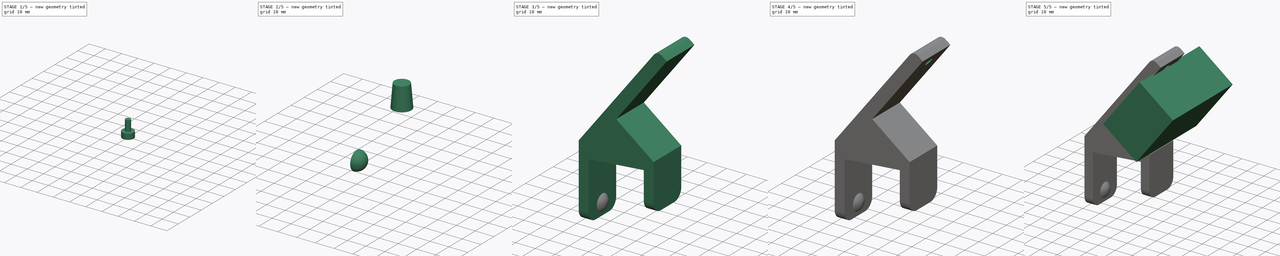
[diagram: build sequence overview — one tinted view per stage of 5, left to right]
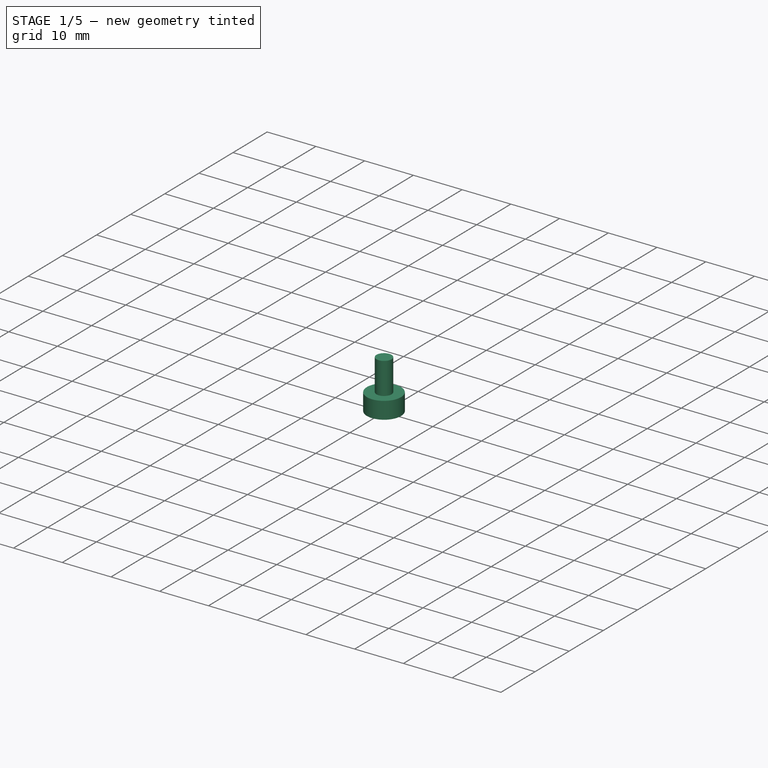
[diagram: stage 1 of 5 — iso view after this stage's code; geometry added in this stage tinted green]
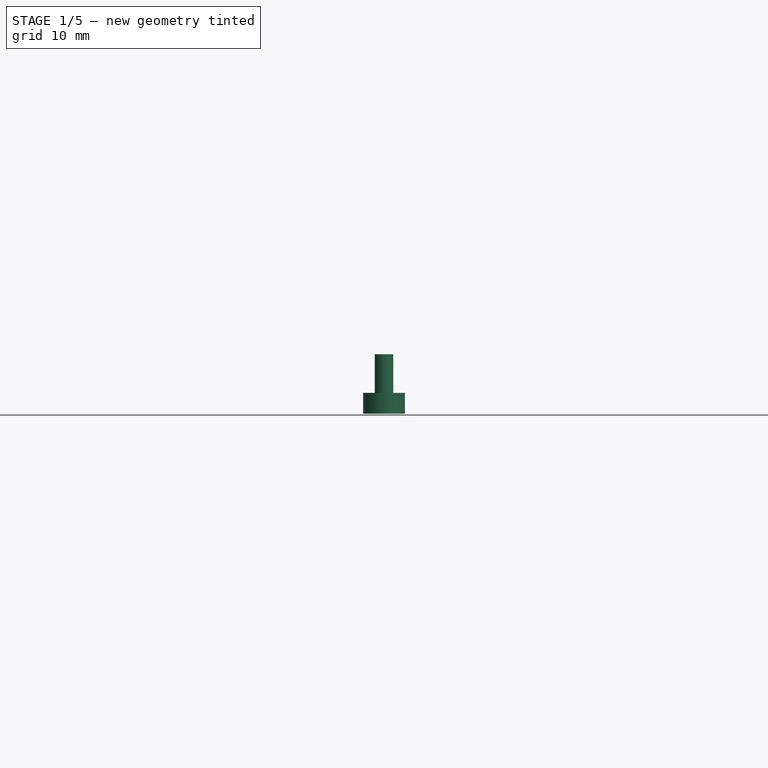
[diagram: stage 1 of 5 — front view after this stage's code; geometry added in this stage tinted green]
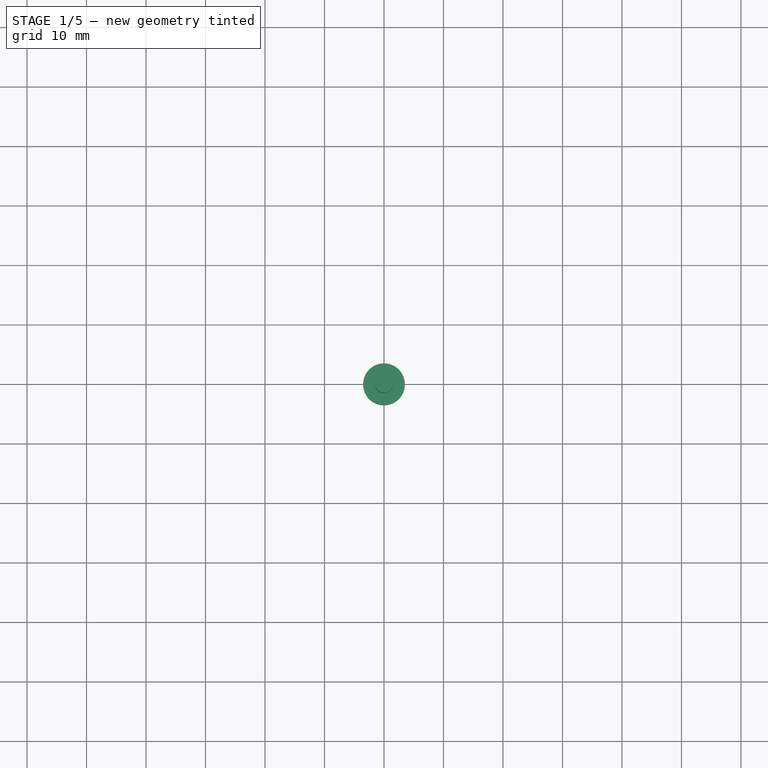
[diagram: stage 1 of 5 — top view after this stage's code; geometry added in this stage tinted green]
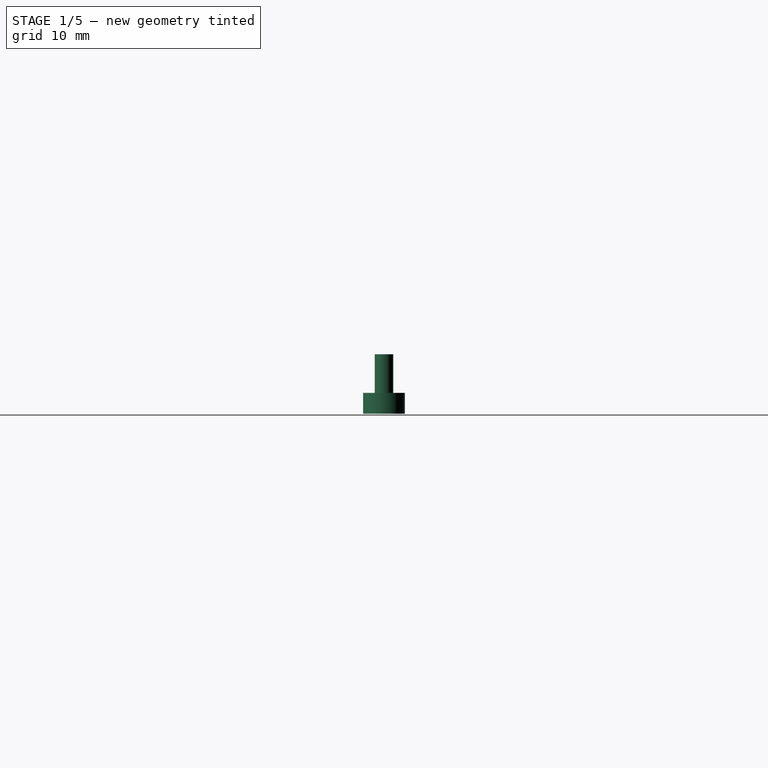
[diagram: stage 1 of 5 — right view after this stage's code; geometry added in this stage tinted green]
FCSTD DOCUMENT  (FreeCAD 0.19R)
Label: led_lamp_monitor_holder
License: All rights reserved
LicenseURL: http://en.wikipedia.org/wiki/All_rights_reserved
objects: Part::Cylinder×3, Part::FeaturePython×3, Part::Sphere×2, Part::MultiFuse×2, Part::Cut×2, App::Part×2, Sketcher::SketchObject×1, PartDesign::Pad×1, PartDesign::Body×1, Part::Box×1, Part::Fillet×1, Part::Plane×1, App::DocumentObjectGroup×1, Part::Cone×1
note: 20 computed .brp shape members not serialized (recipe doc carries the construction recipe); baked Part::Feature solids carry a one-line shape summary decoded from their .brp

FEATURE [Part::Cylinder] Cylinder003  label="nut hole cylinder"
  Angle = 360
  AttacherType = Attacher::AttachEngine3D
  Height = 3.5
  Radius = 3.5
FEATURE [Part::Cylinder] Cylinder004  label="bolt hole cylinder"
  Angle = 360
  AttacherType = Attacher::AttachEngine3D
  Height = 10
  Radius = 1.55
FEATURE [Part::MultiFuse] Fusion003  label="hole extraction"
  Shapes = -> [Cylinder003,Cylinder004]
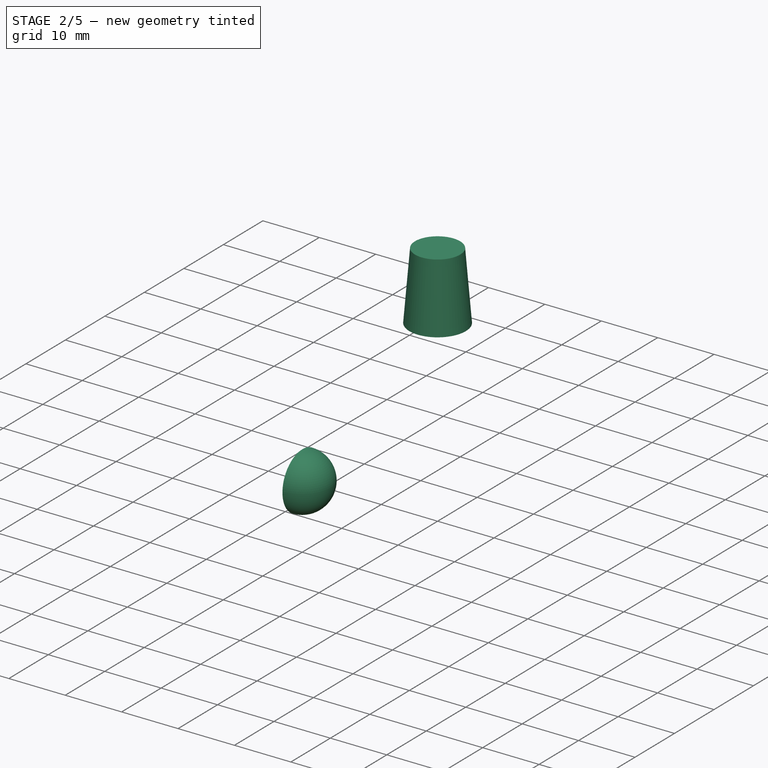
[diagram: stage 2 of 5 — iso view after this stage's code; geometry added in this stage tinted green]
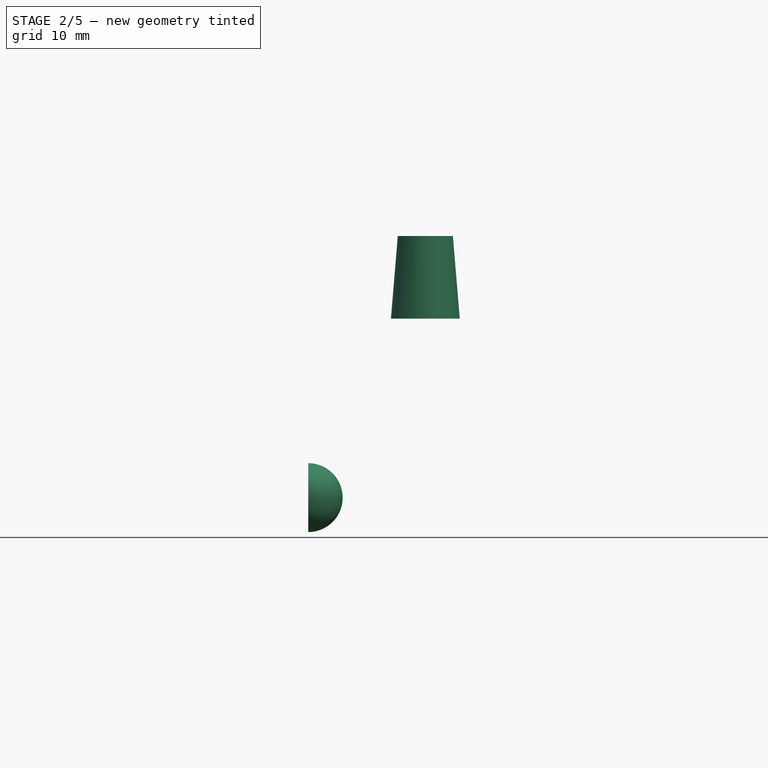
[diagram: stage 2 of 5 — front view after this stage's code; geometry added in this stage tinted green]
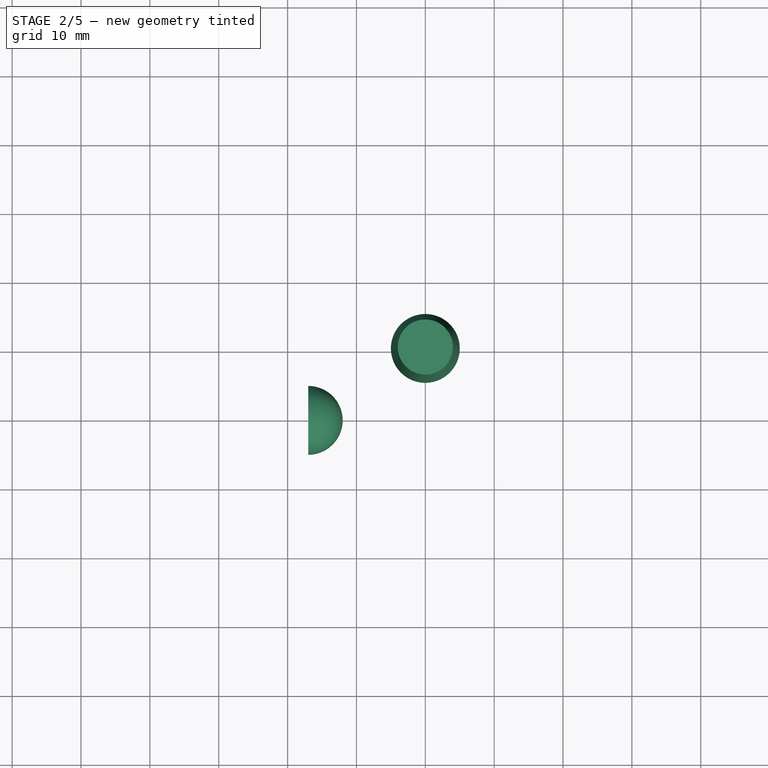
[diagram: stage 2 of 5 — top view after this stage's code; geometry added in this stage tinted green]
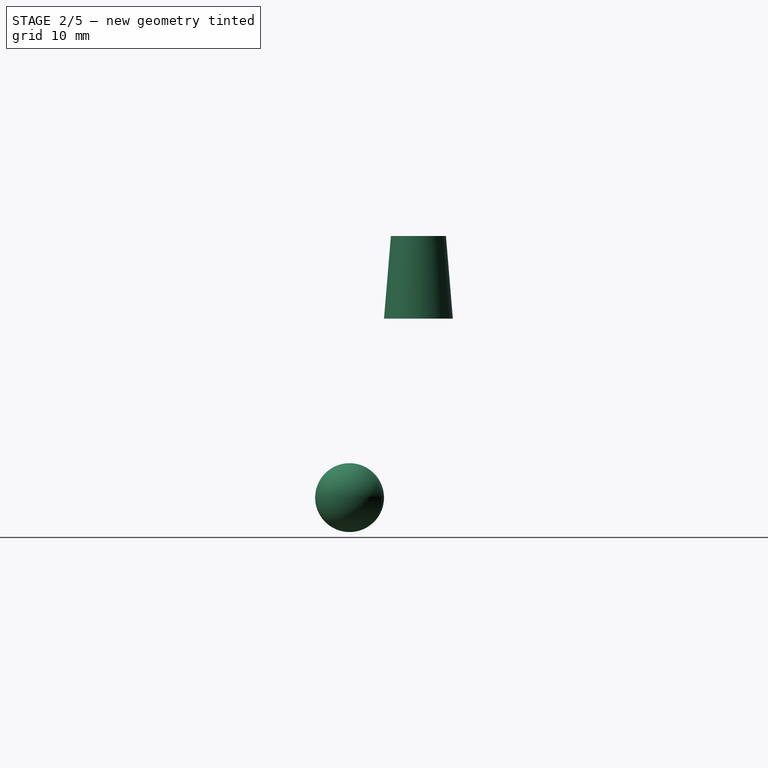
[diagram: stage 2 of 5 — right view after this stage's code; geometry added in this stage tinted green]
FEATURE [Part::Sphere] Sphere001
  Angle1 = -90
  Angle2 = 90
  Angle3 = 180
  AttacherType = Attacher::AttachEngine3D
  Placement = pos=(-17,-10,-26) rot=(0,0,-1;1.5708rad)
  Radius = 5
FEATURE [App::DocumentObjectGroup] GrExplode_Slice  label="Test Exploded Slice"
  Group = -> [Slice_child0,Slice_child1]
FEATURE [Part::Cone] Cone
  Angle = 360
  AttacherType = Attacher::AttachEngine3D
  Height = 12
  Radius1 = 5
  Radius2 = 4
FEATURE [Part::Cut] Cut001  label="bolt cover"
  Base = -> Cone
  Tool = -> Fusion003
FEATURE [App::Part] Part001  label="bolt cover part"
  Group = -> [Cone,Cylinder003,Cylinder004,Fusion003,Cut001]
  Origin = -> Origin003
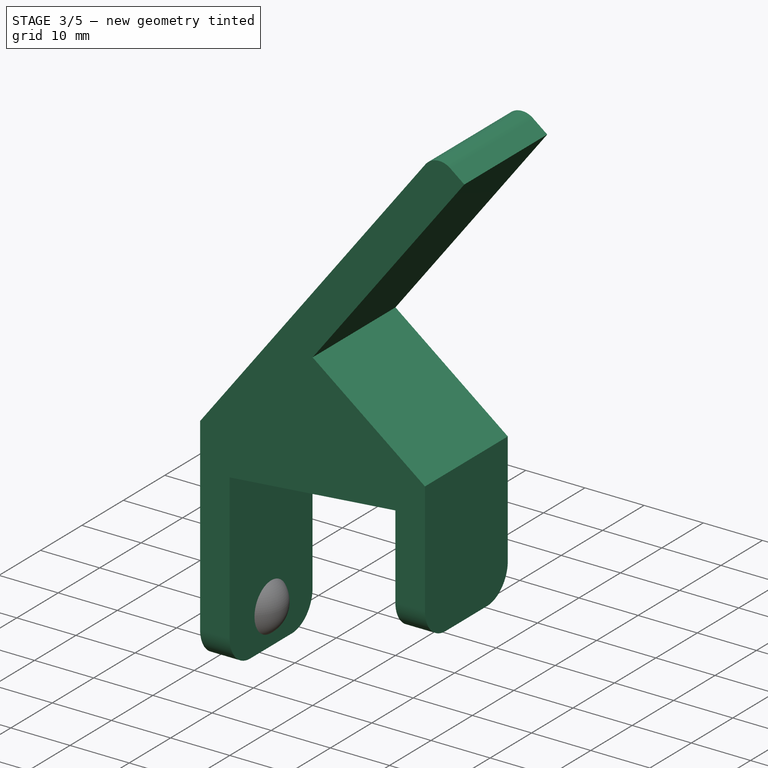
[diagram: stage 3 of 5 — iso view after this stage's code; geometry added in this stage tinted green]
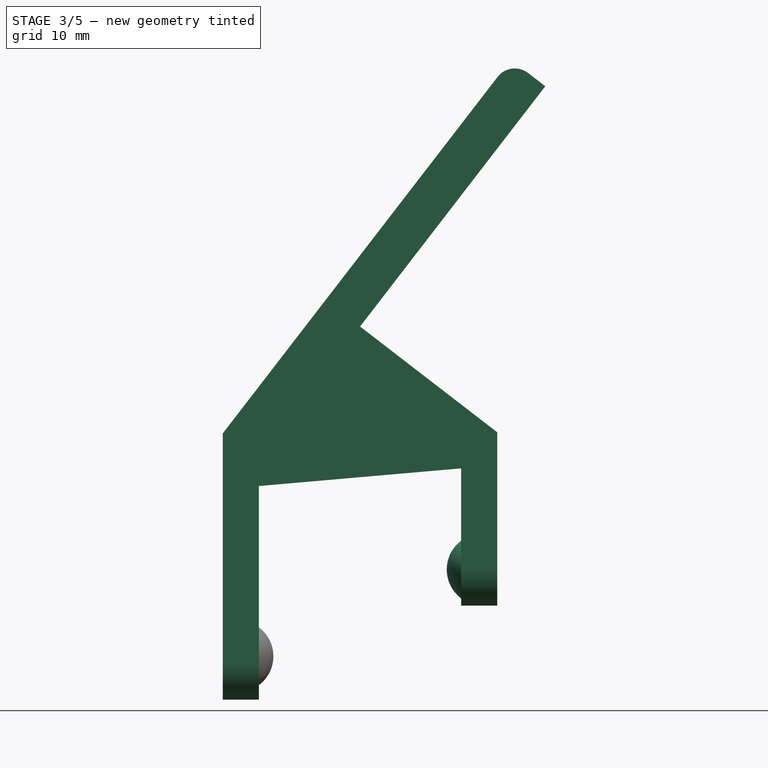
[diagram: stage 3 of 5 — front view after this stage's code; geometry added in this stage tinted green]
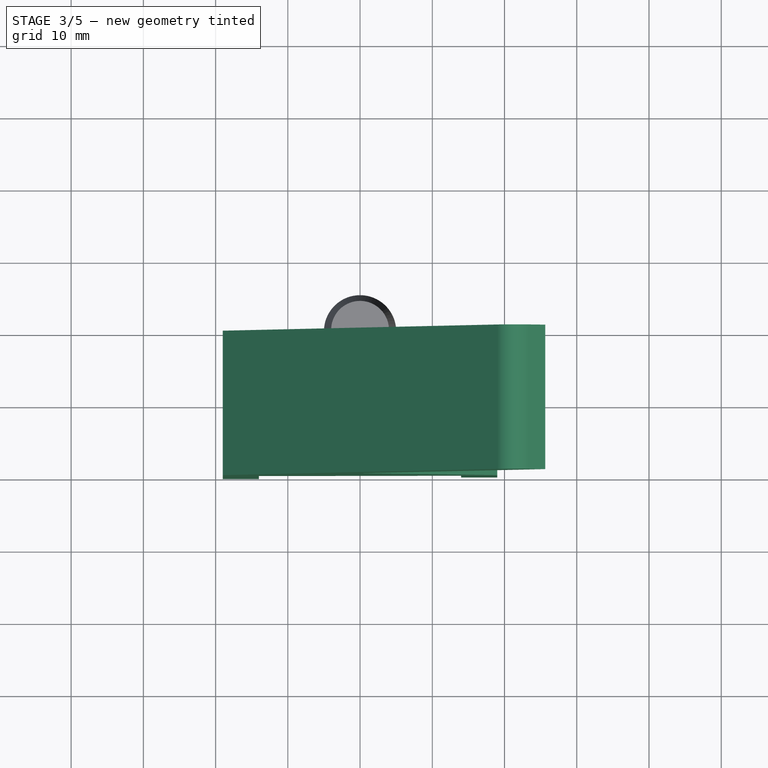
[diagram: stage 3 of 5 — top view after this stage's code; geometry added in this stage tinted green]
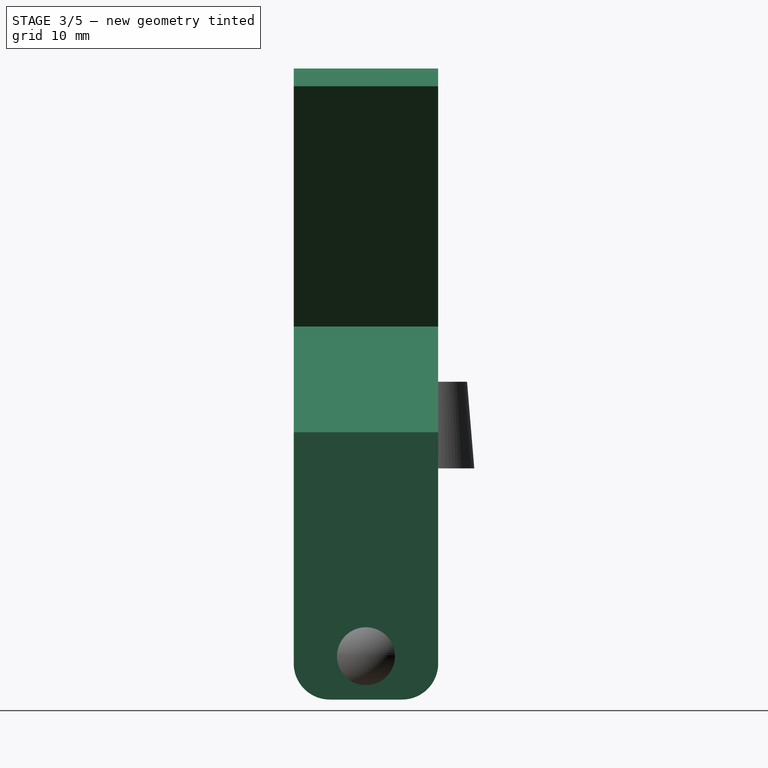
[diagram: stage 3 of 5 — right view after this stage's code; geometry added in this stage tinted green]
FEATURE [Sketcher::SketchObject] Sketch
  FullyConstrained = false
  MapMode = 5
  Placement = pos=(0,0,0) rot=(1,0,0;1.5708rad)
  Support = -> [XZ_Plane001]
  sketch-geometry (12):
    g0: LineSegment StartX=-14.0149 StartY=-32 StartZ=0 EndX=-14.0149 EndY=-2.44323 EndZ=0
    g1: LineSegment StartX=13.9851 StartY=0.00644896 StartZ=0 EndX=13.9851 EndY=-18.9936 EndZ=0
    g2: LineSegment StartX=-14.0149 StartY=-2.44323 StartZ=0 EndX=13.9851 EndY=0.00644896 EndZ=0
    g3: LineSegment StartX=-14.0149 StartY=-32 StartZ=0 EndX=-19.0149 EndY=-32 EndZ=0
    g4: LineSegment StartX=-19.0149 StartY=-32 StartZ=0 EndX=-19.0149 EndY=4.83531 EndZ=0
    g5: LineSegment StartX=13.9851 StartY=-18.9936 StartZ=0 EndX=18.9851 EndY=-18.9936 EndZ=0
    g6: LineSegment StartX=18.9851 StartY=-18.9936 StartZ=0 EndX=18.9851 EndY=5.00645 EndZ=0
    g7: LineSegment StartX=-19.0149 StartY=4.83531 StartZ=0 EndX=19.0455 EndY=54.2042 EndZ=0
    g8: LineSegment StartX=25.6435 StartY=52.9056 StartZ=0 EndX=23.2531 EndY=54.7484 EndZ=0
    g9: LineSegment StartX=18.9851 StartY=5.00645 StartZ=0 EndX=0 EndY=19.6428 EndZ=0
    g10: LineSegment StartX=0 StartY=19.6428 StartZ=0 EndX=25.6435 EndY=52.9056 EndZ=0
    g11: ArcOfCircle CenterX=21.4214 CenterY=52.3725 CenterZ=0 NormalX=0 NormalY=0 NormalZ=1 AngleXU=0 Radius=3 StartAngle=0.914029 EndAngle=2.48483
  constraints (32):
    c: Vertical(g0)
    c: Vertical(g1)
    c: Coincident(g2,g0)
    c: Coincident(g2,g1)
    c: Coincident(g3,g0)
    c: Coincident(g4,g3)
    c: Vertical(g4)
    c: Coincident(g5,g1)
    c: Horizontal(g5)
    c: Coincident(g6,g5)
    c: Vertical(g6)
    c: Coincident(g7,g4)
    c: DistanceX(g2,g2) = 28
    c: Horizontal(g3)
    c: DistanceX(g3,g3) = 5
    c: DistanceX(g5,g5) = 5
    c: DistanceY(g1,g1) = 19
    c: Coincident(g9,g6)
    c: PointOnObject(g9,g-2)
    c: Coincident(g10,g9)
    c: Coincident(g8,g10)
    c: Distance(g9) = 23.972
    c: Distance(g10) = 42
    c: DistanceY(g1,g6) = 5
    c: Angle(g9,g10) = 1.5708
    c: Parallel(g7,g10)
    c: Angle(g7,g8) = 1.5708
    c: Tangent(g7,g11) = 1.5708
    c: Tangent(g8,g11) = -1.5708
    c: Radius(g11) = 3
    c: Angle(g9,g6) = 2.22756
    c: Angle(g-1,g2) = 0.0872665
FEATURE [PartDesign::Pad] Pad
  Direction = (1,1,1)
  Length = 20
  Length2 = 100
  Placement = pos=(0,0,0) rot=(1,0,0;1.5708rad)
  Profile = -> Sketch
  Type = 0
FEATURE [Part::Fillet] Fillet
  Base = -> Pad
  Edges = 4 edges r=5: [Edge12,Edge13,Edge35,Edge36]
FEATURE [Part::Plane] Plane
  AttacherType = Attacher::AttachEngine3D
  Length = 100
  Placement = pos=(-42,-43,5) rot=(0,0,1;0rad)
  Width = 100
FEATURE [Part::Sphere] Sphere
  Angle1 = -90
  Angle2 = 90
  Angle3 = 180
  AttacherType = Attacher::AttachEngine3D
  Placement = pos=(17,-10,-14) rot=(0,0,1;1.5708rad)
  Radius = 5
FEATURE [Part::MultiFuse] Fusion002  label="bolled fusion"
  Shapes = -> [Fillet,Sphere001,Sphere]
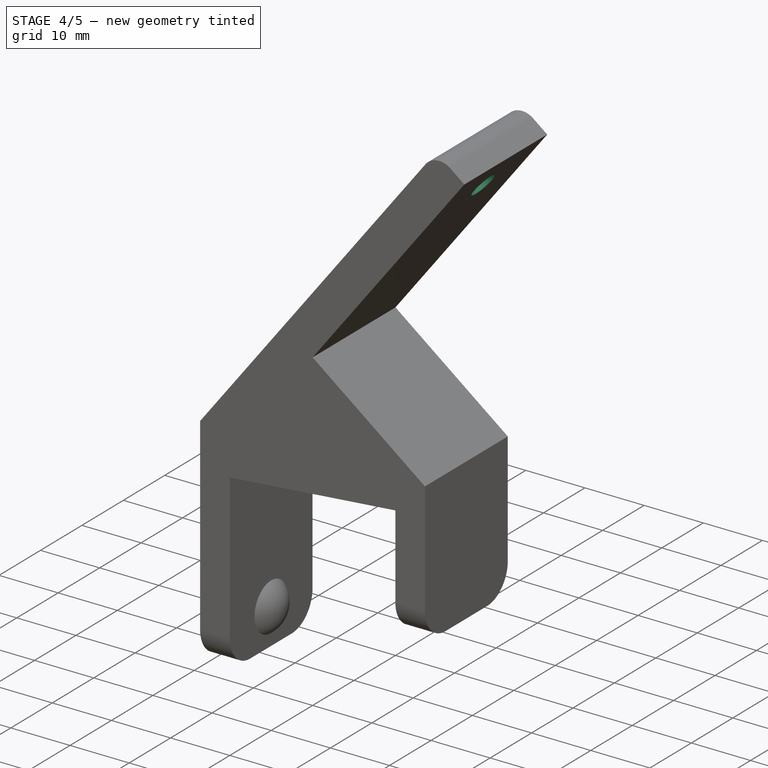
[diagram: stage 4 of 5 — iso view after this stage's code; geometry added in this stage tinted green]
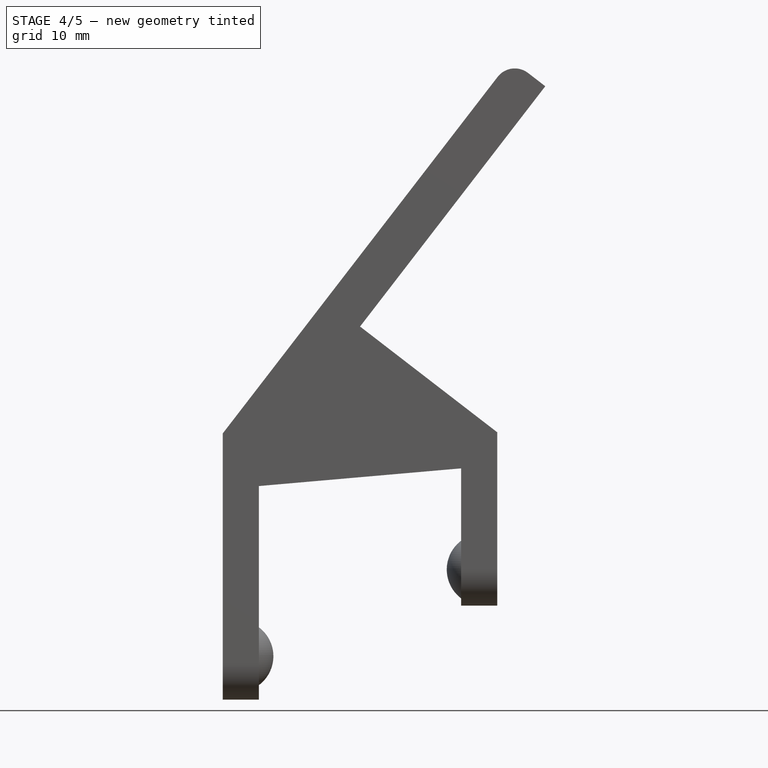
[diagram: stage 4 of 5 — front view after this stage's code; geometry added in this stage tinted green]
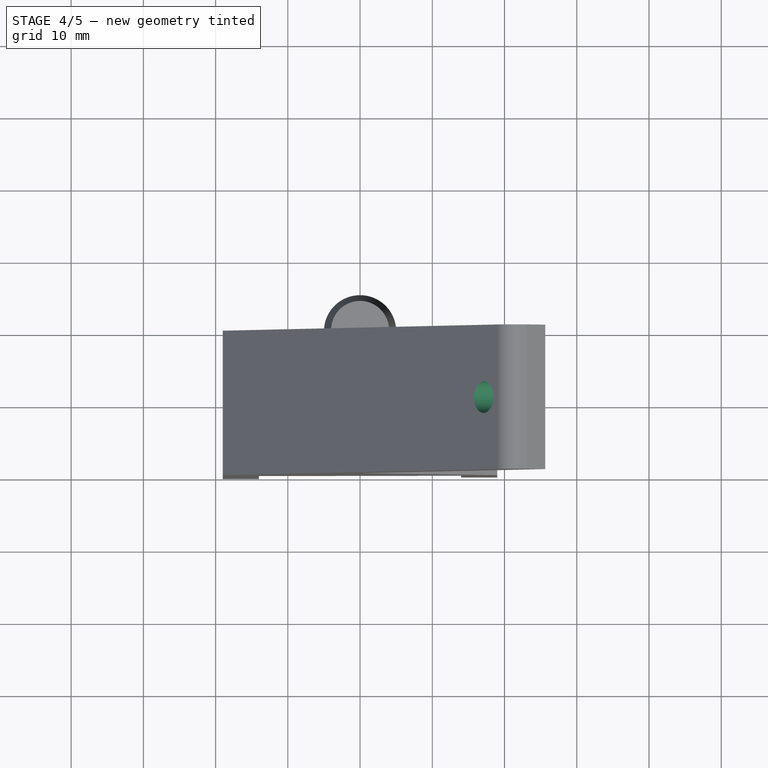
[diagram: stage 4 of 5 — top view after this stage's code; geometry added in this stage tinted green]
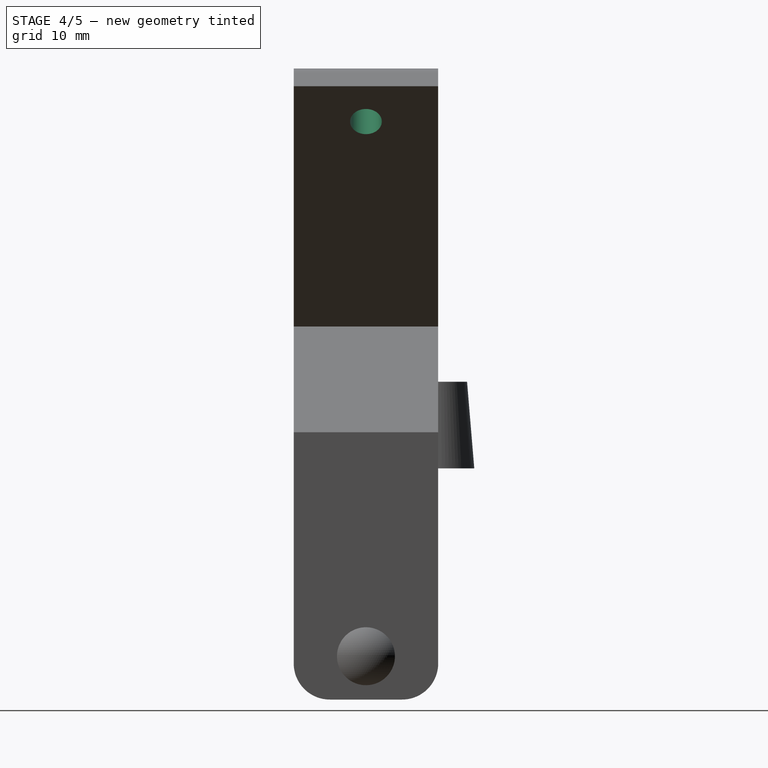
[diagram: stage 4 of 5 — right view after this stage's code; geometry added in this stage tinted green]
FEATURE [PartDesign::Body] Body  label="main body"
  Group = -> [Sketch,Pad]
  Origin = -> Origin001
  Tip = -> Pad
FEATURE [Part::Cylinder] Cylinder001  label="insert hole"
  Angle = 360
  AttacherType = Attacher::AttachEngine3D
  Height = 20
  Placement = pos=(10.5,-10,56.79) rot=(0,1,0;2.22756rad)
  Radius = 2.2
FEATURE [Part::Cut] Cut  label="body cut"
  Base = -> Fusion002
  Tool = -> Cylinder001
FEATURE [App::Part] Part  label="mount part"
  Group = -> [Body,Cylinder001,Cut]
  Origin = -> Origin
FEATURE [Part::FeaturePython] Slice  # WARN: FeaturePython — macro-defined, semantics opaque (R4)
  Base = -> Cut
  Mode = 1
  Tolerance = 0
  Tools = -> [Plane]
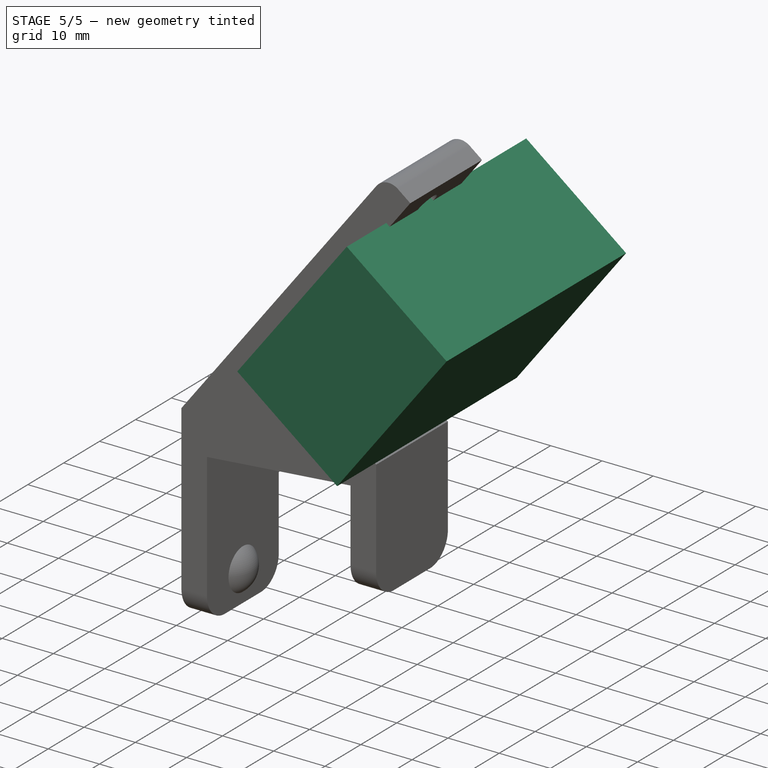
[diagram: stage 5 of 5 — iso view after this stage's code; geometry added in this stage tinted green]
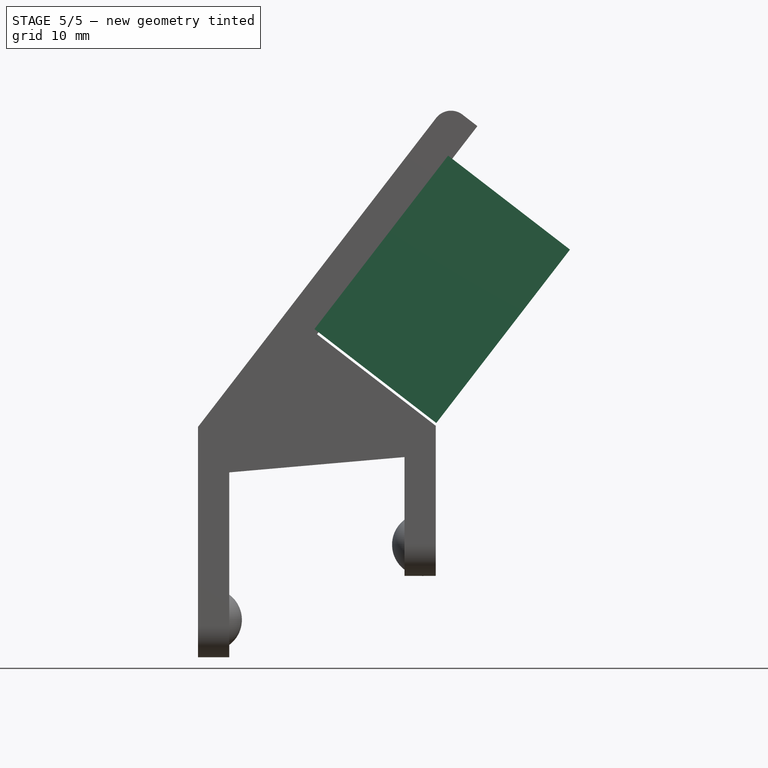
[diagram: stage 5 of 5 — front view after this stage's code; geometry added in this stage tinted green]
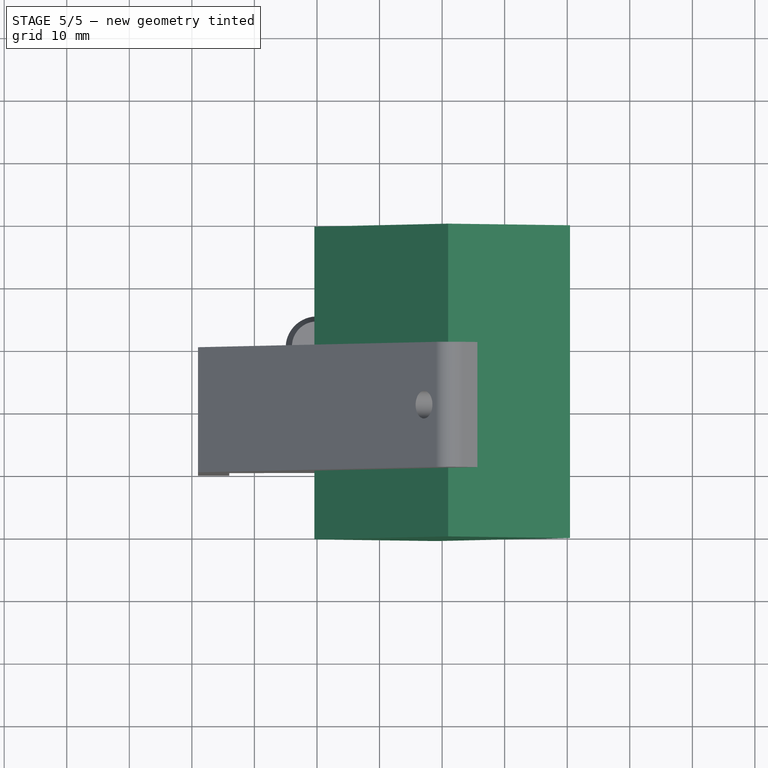
[diagram: stage 5 of 5 — top view after this stage's code; geometry added in this stage tinted green]
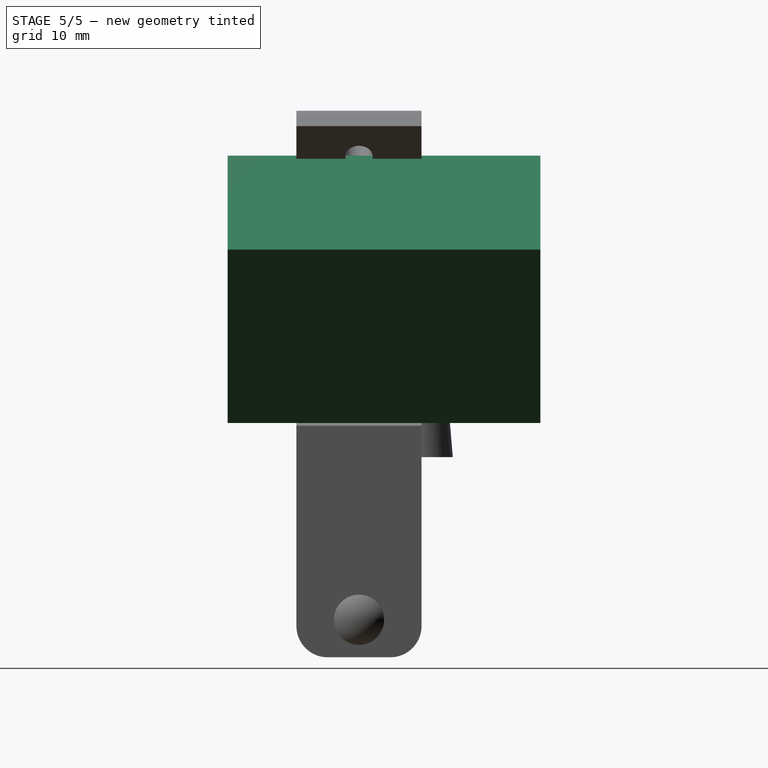
[diagram: stage 5 of 5 — right view after this stage's code; geometry added in this stage tinted green]
FEATURE [Part::Box] Box  label="led lamp mockup"
  AttacherType = Attacher::AttachEngine3D
  Height = 24.6
  Length = 35
  Placement = pos=(20.96,-31,48.19) rot=(0,1,0;2.22756rad)
  Width = 50
  expr: .Placement.Rotation.Angle = -127.63
FEATURE [Part::FeaturePython] Slice_child0  label="Slice.0"  # WARN: FeaturePython — macro-defined, semantics opaque (R4)
  Base = -> Slice
  FilterType = 1
  Invert = false
  OverrideMaxVal = 0
  WindowFrom = 80
  WindowTo = 100
  items = 0
FEATURE [Part::FeaturePython] Slice_child1  label="Slice.1"  # WARN: FeaturePython — macro-defined, semantics opaque (R4)
  Base = -> Slice
  FilterType = 1
  Invert = false
  OverrideMaxVal = 0
  WindowFrom = 80
  WindowTo = 100
  items = 1
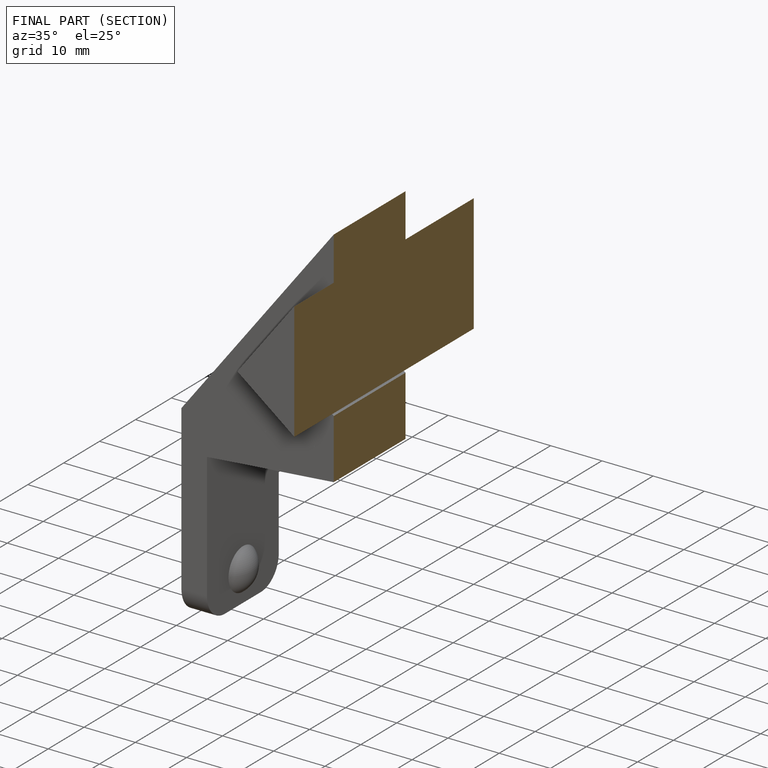
[diagram: finished part — half-section view (interior)]
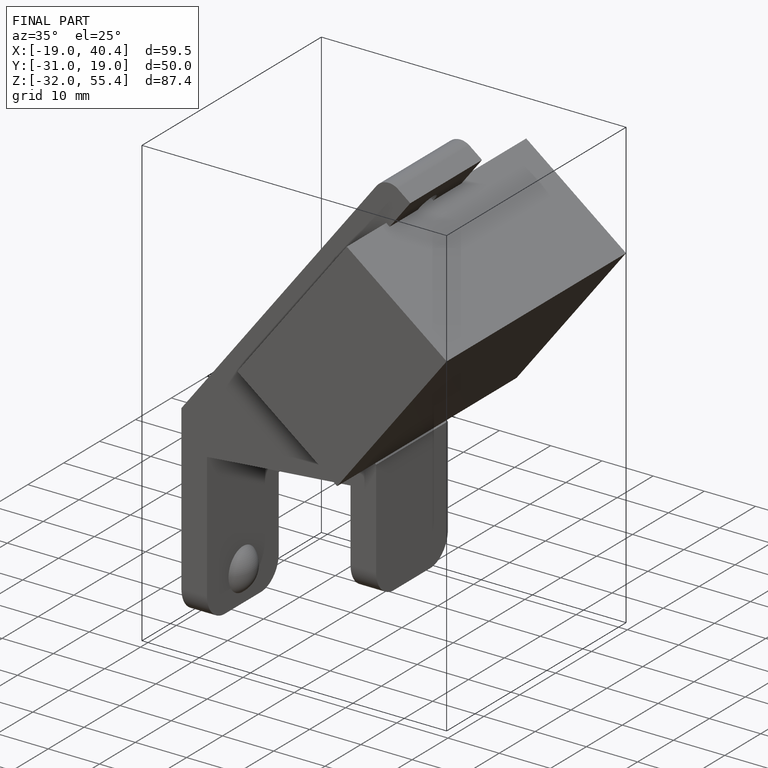
[diagram: finished part — iso view with bounding-box wireframe]
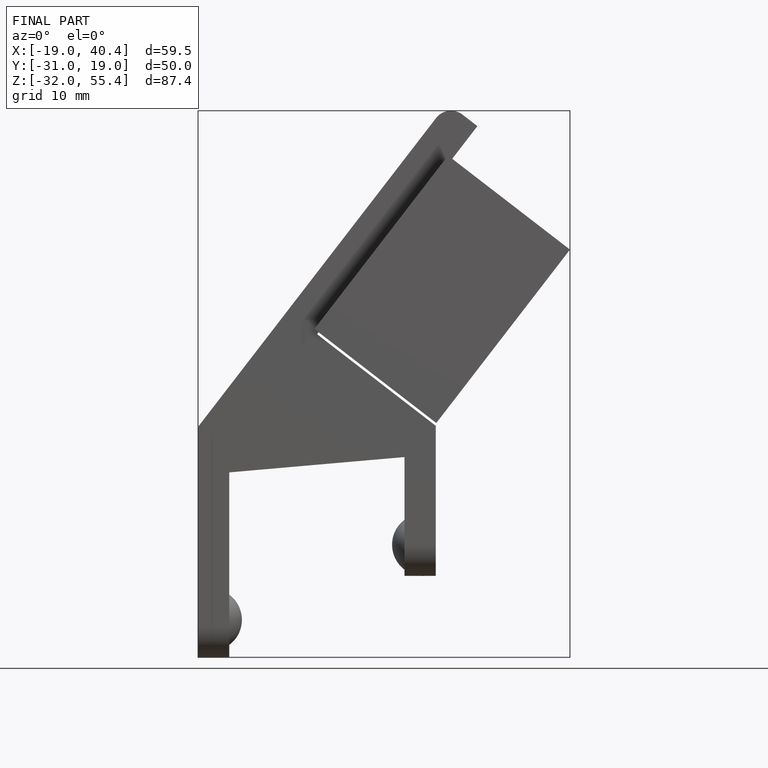
[diagram: finished part — front view with bounding-box wireframe]
